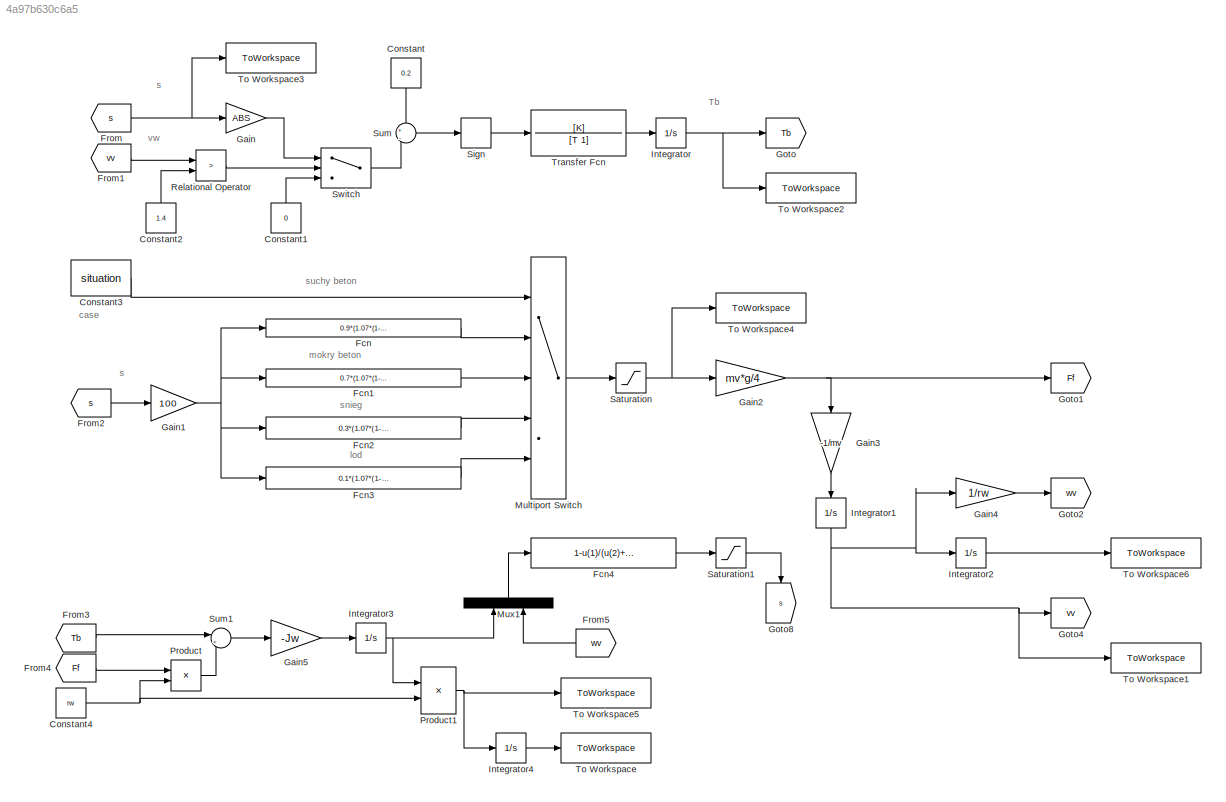
MODEL slx_4a97b630c6a5
KIND model
CONFIG AbsTol = auto
CONFIG EnableMultiTasking = off
CONFIG FixedStep = auto
CONFIG MaxStep = auto
CONFIG MinStep = auto
CONFIG RelTol = 1e-3
CONFIG SampleTimeConstraint = Unconstrained
CONFIG Solver = VariableStepAuto
CONFIG SolverName = VariableStepAuto
CONFIG StartTime = 0.0
CONFIG StopTime = 200
BLOCK [Constant] Constant
  Value = 0.2
BLOCK [Constant] Constant1
  Value = 0
BLOCK [Constant] Constant2
  Value = 1.4
BLOCK [Constant] Constant3
  Value = situation
BLOCK [Constant] Constant4
  Value = rw
BLOCK [Fcn] Fcn
  Expr = 0.9*(1.07*(1-exp(-0.2773*u))-0.0026*u)
BLOCK [Fcn] Fcn1
  Expr = 0.7*(1.07*(1-exp(-0.5*u))-0.003*u)
BLOCK [Fcn] Fcn2
  Expr = 0.3*(1.07*(1-exp(-0.1773*u))-0.006*u)
BLOCK [Fcn] Fcn3
  Expr = 0.1*(1.07*(1-exp(-0.38*u))-0.007*u)
BLOCK [Fcn] Fcn4
  Expr = 1-u(1)/(u(2)+(u(2)==0)*eps)
BLOCK [From] From
  GotoTag = s
BLOCK [From] From1
  GotoTag = vv
BLOCK [From] From2
  GotoTag = s
BLOCK [From] From3
  GotoTag = Tb
BLOCK [From] From4
  GotoTag = Ff
BLOCK [From] From5
  GotoTag = wv
BLOCK [Gain] Gain
  Gain = ABS
  OutDataTypeStr = Inherit: Inherit via internal rule
  ParamDataTypeStr = Inherit: Inherit via internal rule
  SaturateOnIntegerOverflow = off
BLOCK [Gain] Gain1
  Gain = 100
  OutDataTypeStr = Inherit: Inherit via internal rule
  ParamDataTypeStr = Inherit: Inherit via internal rule
  SaturateOnIntegerOverflow = off
BLOCK [Gain] Gain2
  Gain = mv*g/4
  OutDataTypeStr = Inherit: Inherit via internal rule
  ParamDataTypeStr = Inherit: Inherit via internal rule
  SaturateOnIntegerOverflow = off
BLOCK [Gain] Gain3
  Gain = -1/mv
  OutDataTypeStr = Inherit: Inherit via internal rule
  ParamDataTypeStr = Inherit: Inherit via internal rule
  SaturateOnIntegerOverflow = off
BLOCK [Gain] Gain4
  Gain = 1/rw
  OutDataTypeStr = Inherit: Inherit via internal rule
  ParamDataTypeStr = Inherit: Inherit via internal rule
  SaturateOnIntegerOverflow = off
BLOCK [Gain] Gain5
  Gain = -Jw
  OutDataTypeStr = Inherit: Inherit via internal rule
  ParamDataTypeStr = Inherit: Inherit via internal rule
  SaturateOnIntegerOverflow = off
BLOCK [Goto] Goto
  GotoTag = Tb
BLOCK [Goto] Goto1
  GotoTag = Ff
BLOCK [Goto] Goto2
  GotoTag = wv
BLOCK [Goto] Goto4
  GotoTag = vv
BLOCK [Goto] Goto8
  GotoTag = s
BLOCK [Integrator] Integrator
  LimitOutput = on
  LowerSaturationLimit = 0
  Ports = [1, 1]
  UpperSaturationLimit = 2000
BLOCK [Integrator] Integrator1
  InitialCondition = v0
  LimitOutput = on
  LowerSaturationLimit = 0.001
  Ports = [1, 1]
  UpperSaturationLimit = 1000
BLOCK [Integrator] Integrator2
  Ports = [1, 1]
BLOCK [Integrator] Integrator3
  InitialCondition = v0/rw
  LimitOutput = on
  LowerSaturationLimit = 0
  Ports = [1, 1]
  UpperSaturationLimit = 1000
BLOCK [Integrator] Integrator4
  Ports = [1, 1]
BLOCK [MultiPortSwitch] Multiport Switch
  InputSameDT = off
  Inputs = 4
  Ports = [5, 1]
  SaturateOnIntegerOverflow = off
BLOCK [Mux] Mux1
  DisplayOption = bar
  Inputs = 2
  Ports = [2, 1]
BLOCK [Product] Product
  InputSameDT = off
  OutDataTypeStr = Inherit: Inherit via internal rule
  Ports = [2, 1]
  RndMeth = Floor
  SaturateOnIntegerOverflow = off
BLOCK [Product] Product1
  InputSameDT = off
  OutDataTypeStr = Inherit: Inherit via internal rule
  Ports = [2, 1]
  RndMeth = Floor
  SaturateOnIntegerOverflow = off
BLOCK [RelationalOperator] Relational Operator
  InputSameDT = off
  Operator = >
  OutDataTypeStr = boolean
  Ports = [2, 1]
  RndMeth = Simplest
BLOCK [Saturate] Saturation
  InputPortMap = u0
  LowerLimit = 0
  Ports = [1, 1]
  UpperLimit = 1
BLOCK [Saturate] Saturation1
  InputPortMap = u0
  LowerLimit = 0
  Ports = [1, 1]
  UpperLimit = 1
BLOCK [Signum] Sign
BLOCK [Sum] Sum
  IconShape = round
  InputSameDT = off
  Inputs = +|-
  OutDataTypeStr = Inherit: Inherit via internal rule
  Ports = [2, 1]
  SaturateOnIntegerOverflow = off
BLOCK [Sum] Sum1
  IconShape = round
  InputSameDT = off
  Inputs = |+-
  OutDataTypeStr = Inherit: Inherit via internal rule
  Ports = [2, 1]
  SaturateOnIntegerOverflow = off
BLOCK [Switch] Switch
  Criteria = u2 > Threshold
  InputSameDT = off
  SaturateOnIntegerOverflow = off
BLOCK [ToWorkspace] To Workspace
  FixptAsFi = on
  MaxDataPoints = inf
  Ports = [1]
  SampleTime = -1
  SaveFormat = Timeseries
  VariableName = dw
BLOCK [ToWorkspace] To Workspace1
  FixptAsFi = on
  MaxDataPoints = inf
  Ports = [1]
  SampleTime = -1
  SaveFormat = Timeseries
  VariableName = vv
BLOCK [ToWorkspace] To Workspace2
  FixptAsFi = on
  MaxDataPoints = inf
  Ports = [1]
  SampleTime = -1
  SaveFormat = Timeseries
  VariableName = Tb
BLOCK [ToWorkspace] To Workspace3
  FixptAsFi = on
  MaxDataPoints = inf
  Ports = [1]
  SampleTime = -1
  SaveFormat = Timeseries
  VariableName = s
BLOCK [ToWorkspace] To Workspace4
  FixptAsFi = on
  MaxDataPoints = inf
  Ports = [1]
  SampleTime = -1
  SaveFormat = Timeseries
  VariableName = mi
BLOCK [ToWorkspace] To Workspace5
  FixptAsFi = on
  MaxDataPoints = inf
  Ports = [1]
  SampleTime = -1
  SaveFormat = Timeseries
  VariableName = vw
BLOCK [ToWorkspace] To Workspace6
  FixptAsFi = on
  MaxDataPoints = inf
  Ports = [1]
  SampleTime = -1
  SaveFormat = Timeseries
  VariableName = dv
BLOCK [TransferFcn] Transfer Fcn
  Denominator = [T 1]
  Numerator = [K]
ANNOTATION (root): Tb
ANNOTATION (root): case
ANNOTATION (root): lod
ANNOTATION (root): mokry beton
ANNOTATION (root): s
ANNOTATION (root): snieg
ANNOTATION (root): suchy beton
ANNOTATION (root): vw
LINE Constant1:1 -> Switch:3
LINE Constant2:1 -> Relational Operator:2
LINE Constant3:1 -> Multiport Switch:1
NET Constant4:1 -> Product1:2, Product:2
LINE Constant:1 -> Sum:1
LINE Fcn1:1 -> Multiport Switch:3
LINE Fcn2:1 -> Multiport Switch:4
LINE Fcn3:1 -> Multiport Switch:5
LINE Fcn4:1 -> Saturation1:1
LINE Fcn:1 -> Multiport Switch:2
LINE From1:1 -> Relational Operator:1
LINE From2:1 -> Gain1:1
LINE From3:1 -> Sum1:1
LINE From4:1 -> Product:1
LINE From5:1 -> Mux1:2
NET From:1 -> Gain:1, To Workspace3:1
NET Gain1:1 -> Fcn1:1, Fcn2:1, Fcn3:1, Fcn:1
NET Gain2:1 -> Gain3:1, Goto1:1
LINE Gain3:1 -> Integrator1:1
LINE Gain4:1 -> Goto2:1
LINE Gain5:1 -> Integrator3:1
LINE Gain:1 -> Switch:1
NET Integrator1:1 -> Gain4:1, Goto4:1, Integrator2:1, To Workspace1:1
LINE Integrator2:1 -> To Workspace6:1
NET Integrator3:1 -> Mux1:1, Product1:1
LINE Integrator4:1 -> To Workspace:1
NET Integrator:1 -> Goto:1, To Workspace2:1
LINE Multiport Switch:1 -> Saturation:1
LINE Mux1:1 -> Fcn4:1
NET Product1:1 -> Integrator4:1, To Workspace5:1
LINE Product:1 -> Sum1:2
LINE Relational Operator:1 -> Switch:2
LINE Saturation1:1 -> Goto8:1
NET Saturation:1 -> Gain2:1, To Workspace4:1
LINE Sign:1 -> Transfer Fcn:1
LINE Sum1:1 -> Gain5:1
LINE Sum:1 -> Sign:1
LINE Switch:1 -> Sum:2
LINE Transfer Fcn:1 -> Integrator:1
note: NET lines group one-source signal fan-out (src -> all destinations, sorted); 1:1 wires keep LINE
